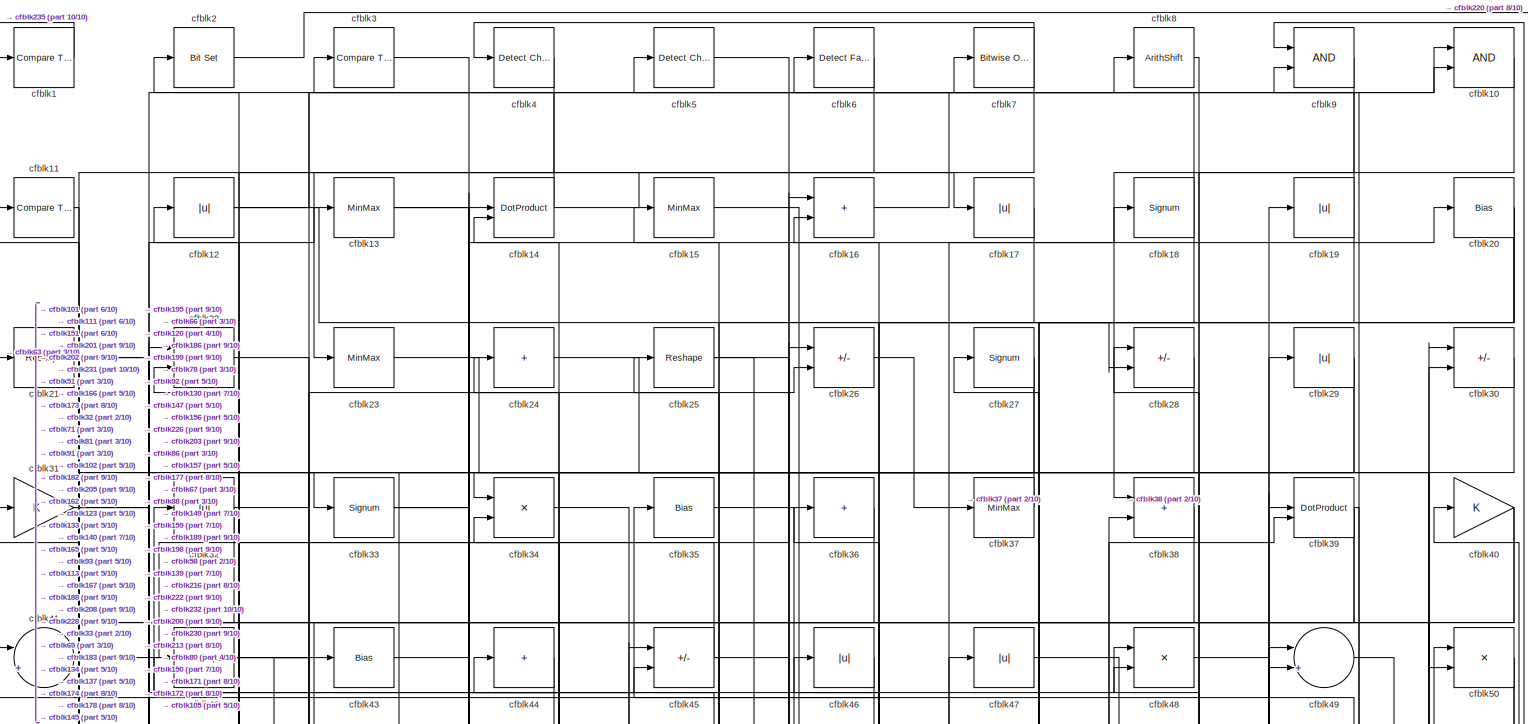
[diagram: root canvas - part 1/10, full width, top band]
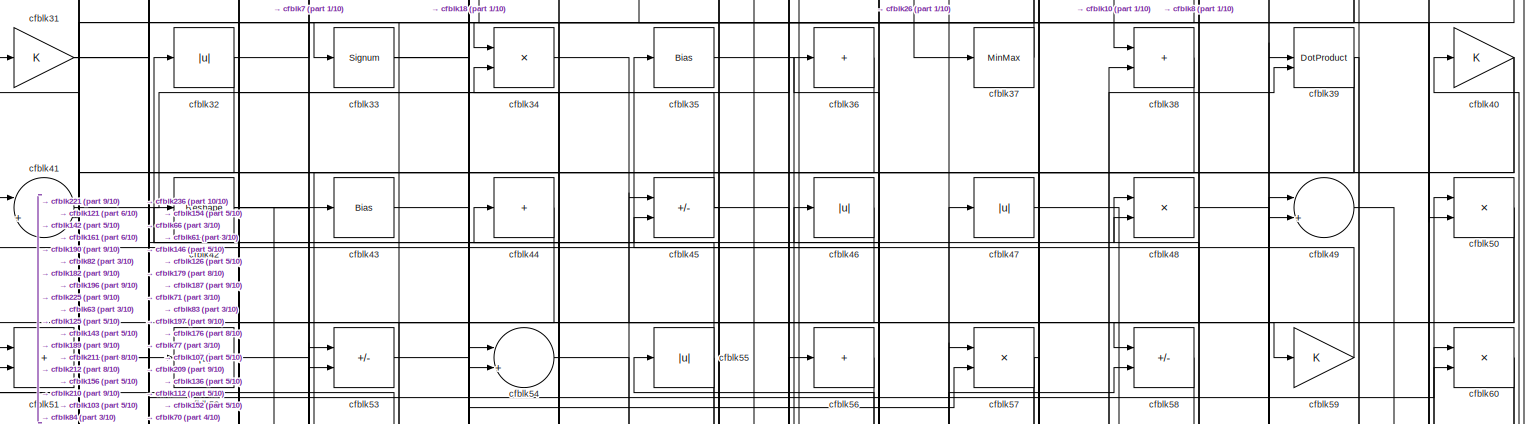
[diagram: root canvas - part 2/10, full width, top band]
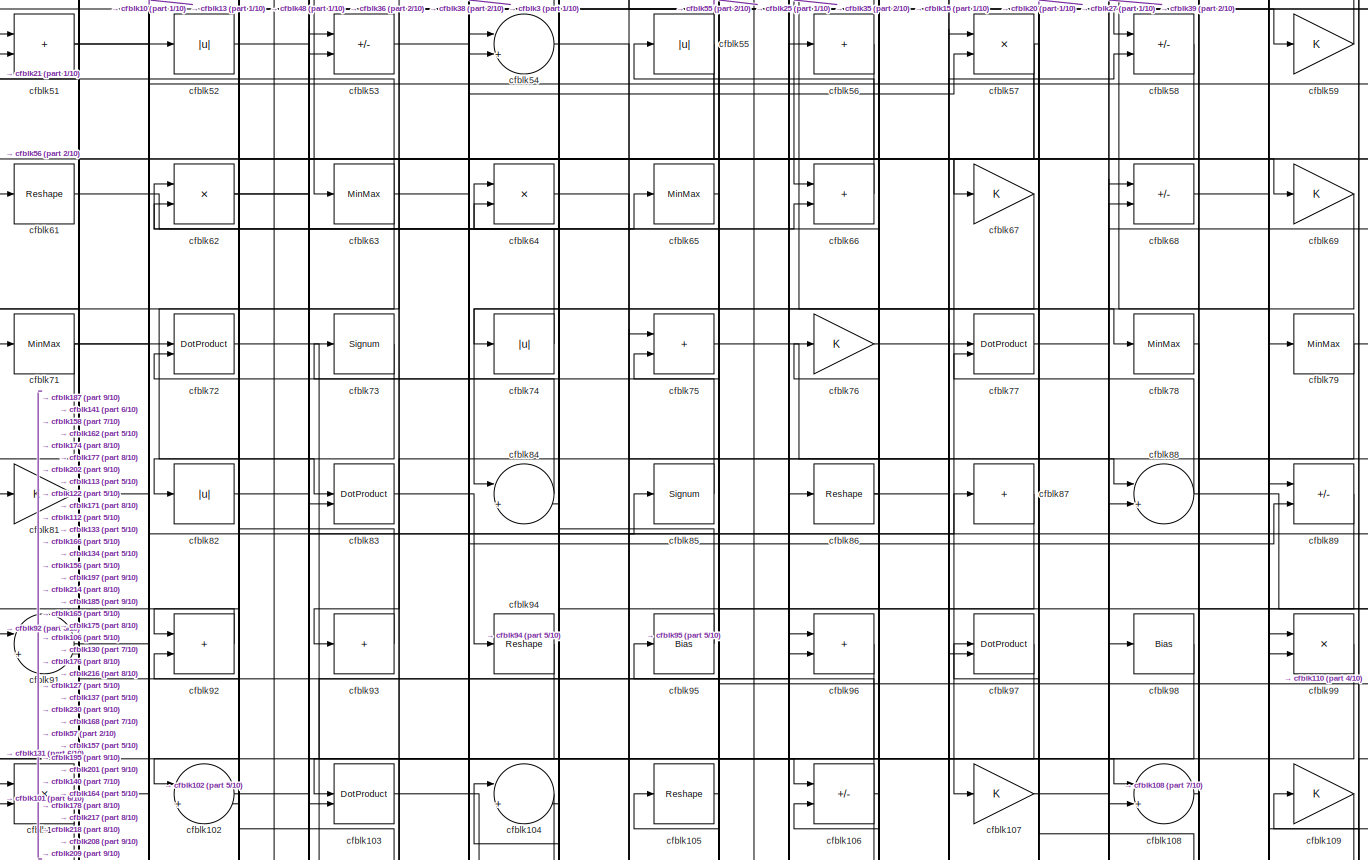
[diagram: root canvas - part 3/10, full width, middle band]
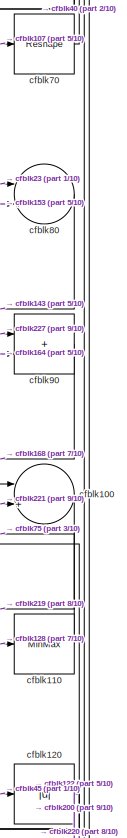
[diagram: root canvas - part 4/10, middle right region]
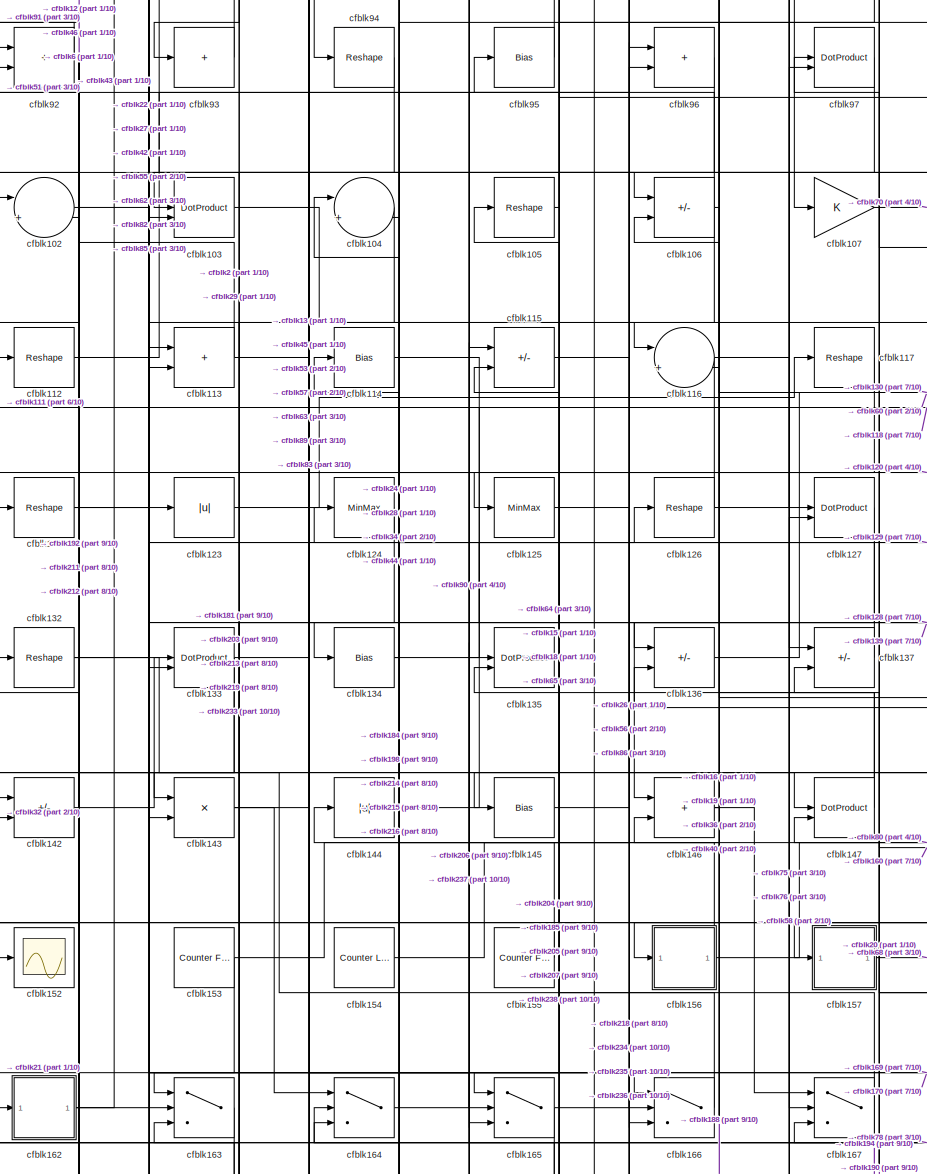
[diagram: root canvas - part 5/10, central region]
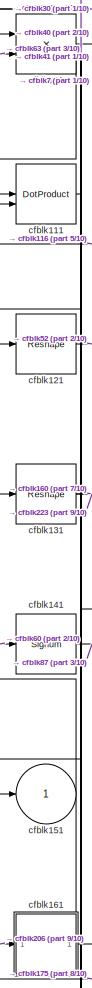
[diagram: root canvas - part 6/10, middle left region]
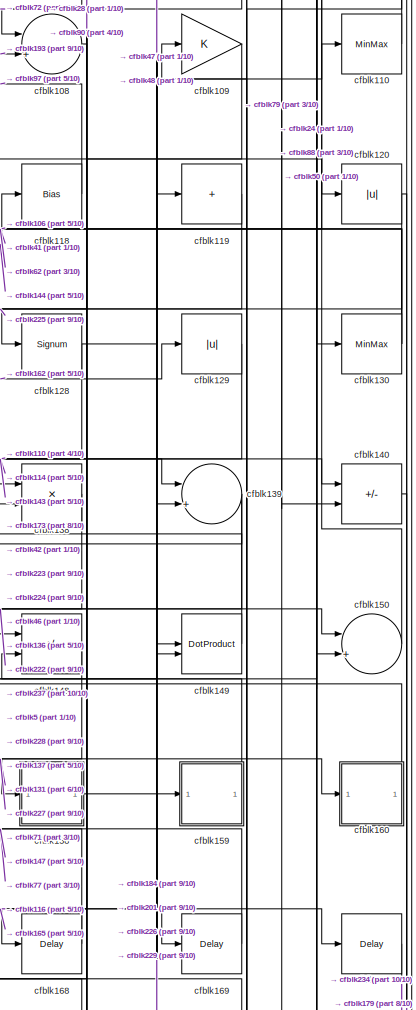
[diagram: root canvas - part 7/10, middle right region]
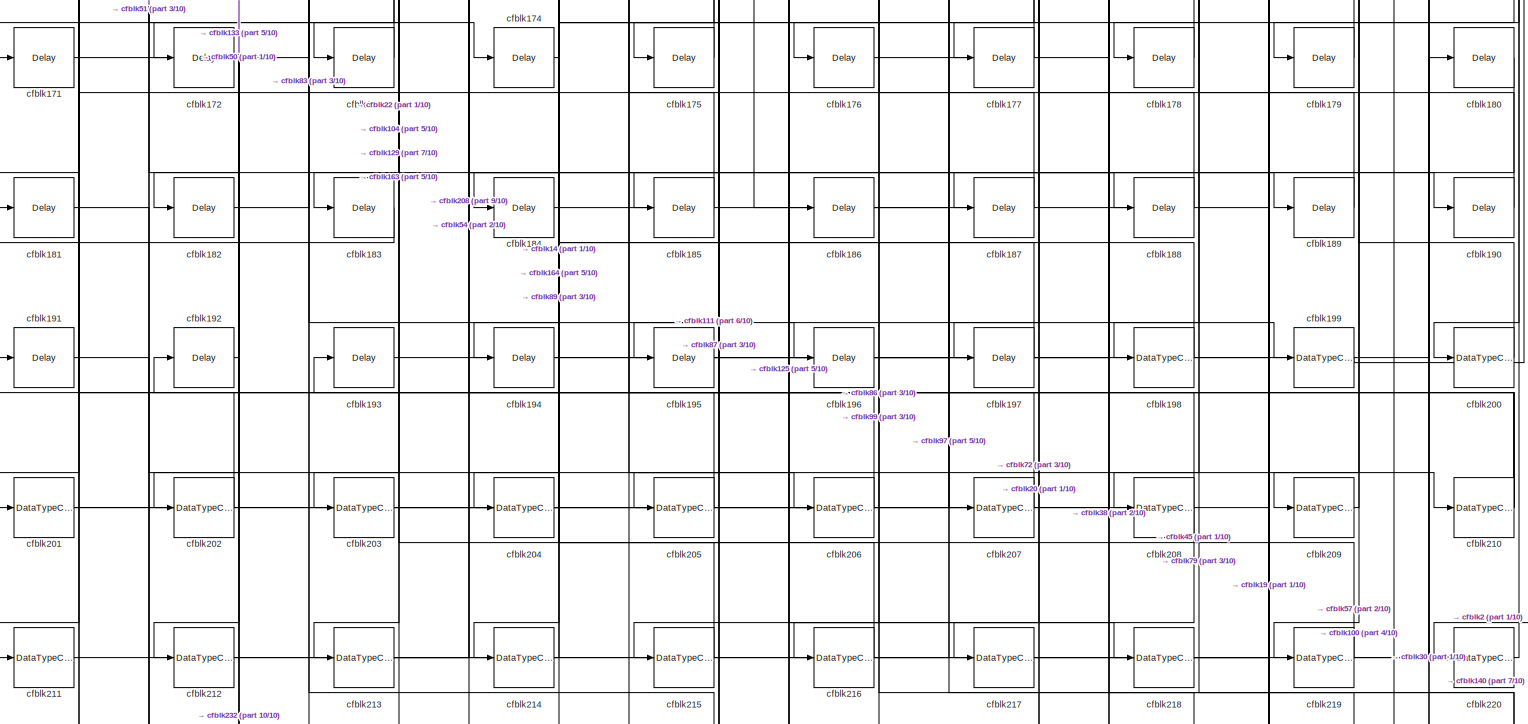
[diagram: root canvas - part 8/10, full width, bottom band]
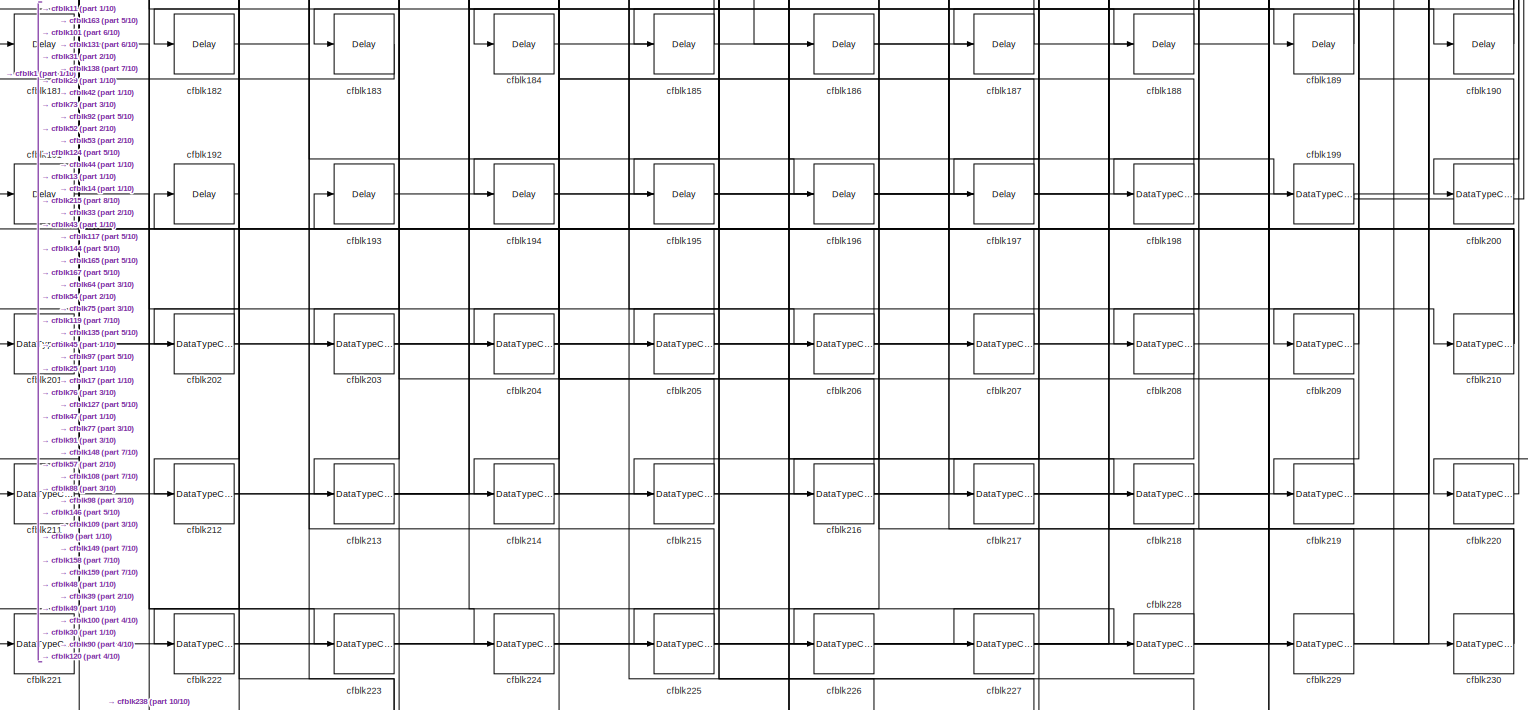
[diagram: root canvas - part 9/10, full width, bottom band]
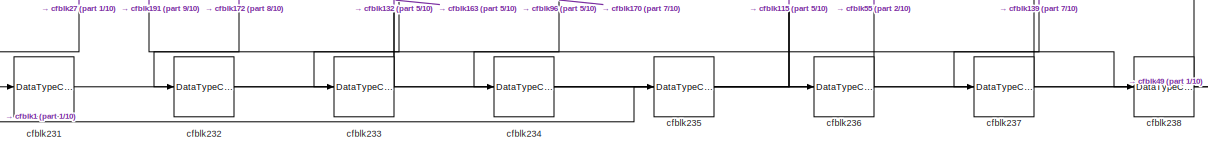
[diagram: root canvas - part 10/10, full width, bottom band]
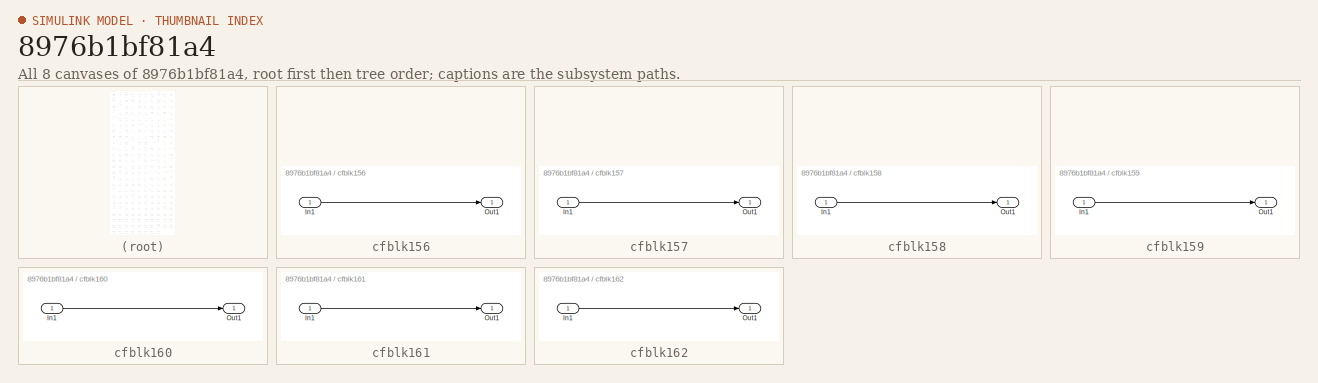
[diagram: thumbnail index - all 8 canvases of the model, root first then tree order]
MODEL slx_8976b1bf81a4
KIND model
CONFIG AbsTol = auto
CONFIG EnableMultiTasking = off
CONFIG FixedStep = auto
CONFIG MaxStep = auto
CONFIG MinStep = auto
CONFIG RelTol = 1e-3
CONFIG SampleTimeConstraint = Unconstrained
CONFIG SolverName = VariableStepAuto
CONFIG StartTime = 0.0
CONFIG StopTime = 10.0
BLOCK [Reference] cfblk1  REF=hdlsllib/Logic and Bit
Operations/Compare
To Zero
  SourceBlock = hdlsllib/Logic and Bit\nOperations/Compare\nTo Zero
  SourceType = Compare To Zero
BLOCK [Logic] cfblk10
  AllPortsSameDT = off
  OutDataTypeStr = boolean
BLOCK [Sum] cfblk100
  Inputs = |++
BLOCK [Product] cfblk101
  Inputs = */
  RndMeth = Zero
  SaturateOnIntegerOverflow = on
BLOCK [Sum] cfblk102
  Inputs = |++
BLOCK [DotProduct] cfblk103
  OutDataTypeStr = Inherit: Inherit via internal rule
BLOCK [Sum] cfblk104
  Inputs = |++
BLOCK [Reshape] cfblk105
BLOCK [Sum] cfblk106
  IconShape = rectangular
  Inputs = +-
BLOCK [Gain] cfblk107
BLOCK [Sum] cfblk108
  Inputs = |++
BLOCK [Gain] cfblk109
BLOCK [Reference] cfblk11  REF=hdlsllib/Logic and Bit
Operations/Compare
To Zero
  SourceBlock = hdlsllib/Logic and Bit\nOperations/Compare\nTo Zero
  SourceType = Compare To Zero
BLOCK [MinMax] cfblk110
BLOCK [DotProduct] cfblk111
  OutDataTypeStr = Inherit: Inherit via internal rule
BLOCK [Reshape] cfblk112
BLOCK [Sum] cfblk113
  IconShape = rectangular
BLOCK [Bias] cfblk114
  Bias = 0.0
  SaturateOnIntegerOverflow = off
BLOCK [Sum] cfblk115
  IconShape = rectangular
  Inputs = +-
BLOCK [Sum] cfblk116
  Inputs = |++
BLOCK [Reshape] cfblk117
BLOCK [Bias] cfblk118
  Bias = 0.0
  SaturateOnIntegerOverflow = off
BLOCK [Sum] cfblk119
  IconShape = rectangular
  Inputs = +
BLOCK [Abs] cfblk12
  SaturateOnIntegerOverflow = off
BLOCK [Abs] cfblk120
  SaturateOnIntegerOverflow = off
BLOCK [Reshape] cfblk121
BLOCK [Reshape] cfblk122
BLOCK [Abs] cfblk123
  SaturateOnIntegerOverflow = off
BLOCK [MinMax] cfblk124
BLOCK [MinMax] cfblk125
BLOCK [Reshape] cfblk126
BLOCK [DotProduct] cfblk127
  OutDataTypeStr = Inherit: Inherit via internal rule
BLOCK [Signum] cfblk128
BLOCK [Abs] cfblk129
  SaturateOnIntegerOverflow = off
BLOCK [MinMax] cfblk13
BLOCK [MinMax] cfblk130
BLOCK [Reshape] cfblk131
BLOCK [Reshape] cfblk132
BLOCK [DotProduct] cfblk133
  OutDataTypeStr = Inherit: Inherit via internal rule
BLOCK [Bias] cfblk134
  Bias = 0.0
  SaturateOnIntegerOverflow = off
BLOCK [DotProduct] cfblk135
  OutDataTypeStr = Inherit: Inherit via internal rule
BLOCK [Sum] cfblk136
  IconShape = rectangular
  Inputs = +-
BLOCK [Sum] cfblk137
  IconShape = rectangular
  Inputs = +-
BLOCK [Product] cfblk138
  Inputs = */
  RndMeth = Zero
  SaturateOnIntegerOverflow = on
BLOCK [Sum] cfblk139
  Inputs = |++
BLOCK [DotProduct] cfblk14
  OutDataTypeStr = Inherit: Inherit via internal rule
BLOCK [Sum] cfblk140
  IconShape = rectangular
  Inputs = +-
BLOCK [Signum] cfblk141
BLOCK [Sum] cfblk142
  IconShape = rectangular
  Inputs = +-
BLOCK [Product] cfblk143
  Inputs = */
  RndMeth = Zero
  SaturateOnIntegerOverflow = on
BLOCK [Abs] cfblk144
  SaturateOnIntegerOverflow = off
BLOCK [Bias] cfblk145
  Bias = 0.0
  SaturateOnIntegerOverflow = off
BLOCK [Sum] cfblk146
  IconShape = rectangular
BLOCK [DotProduct] cfblk147
  OutDataTypeStr = Inherit: Inherit via internal rule
BLOCK [Sum] cfblk148
  IconShape = rectangular
  Inputs = +-
BLOCK [DotProduct] cfblk149
  OutDataTypeStr = Inherit: Inherit via internal rule
BLOCK [MinMax] cfblk15
BLOCK [Sum] cfblk150
  Inputs = |++
BLOCK [Outport] cfblk151
  VectorParamsAs1DForOutWhenUnconnected = off
BLOCK [Scope] cfblk152
  Floating = off
  NumInputPorts = 1
  ScopeSpecificationString = Simulink.scopes.TimeScopeBlockCfg('CurrentConfiguration', extmgr.ConfigurationSet(extmgr.Configuration('Core','General UI',true),extmgr.Configuration('Core','Source UI',true),extmgr.Configuration('Sources','WiredSimulink',true,'DataLoggingVariableName','ScopeData2','DataLoggingSaveFormat','Array','DataLoggingLimitDataPoints',true,'DataLoggingDecimation','1'),extmgr.Configuration('Visuals','Time Do...<+868ch>
BLOCK [Reference] cfblk153  REF=hdlsllib/Sources/Counter
Free-Running
  SourceBlock = hdlsllib/Sources/Counter\nFree-Running
  SourceType = Counter Free-Running
BLOCK [Reference] cfblk154  REF=hdlsllib/Sources/Counter
Limited
  SourceBlock = hdlsllib/Sources/Counter\nLimited
  SourceType = Counter Limited
BLOCK [Reference] cfblk155  REF=hdlsllib/Sources/Counter
Free-Running
  SourceBlock = hdlsllib/Sources/Counter\nFree-Running
  SourceType = Counter Free-Running
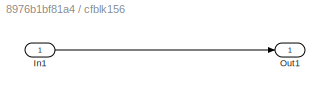
BLOCK [SubSystem] cfblk156
  LibrarySourceBlock = hdlsllib/Ports &\nSubsystems/Subsystem
BLOCK [Inport] cfblk156/In1
BLOCK [Outport] cfblk156/Out1
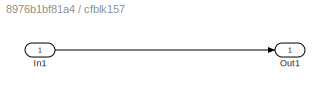
BLOCK [SubSystem] cfblk157
  LibrarySourceBlock = hdlsllib/Ports &\nSubsystems/Subsystem
BLOCK [Inport] cfblk157/In1
BLOCK [Outport] cfblk157/Out1
BLOCK [SubSystem] cfblk158
  LibrarySourceBlock = hdlsllib/Ports &\nSubsystems/Subsystem
BLOCK [Inport] cfblk158/In1
BLOCK [Outport] cfblk158/Out1
BLOCK [SubSystem] cfblk159
  LibrarySourceBlock = hdlsllib/Ports &\nSubsystems/Subsystem
BLOCK [Inport] cfblk159/In1
BLOCK [Outport] cfblk159/Out1
BLOCK [Sum] cfblk16
  IconShape = rectangular
BLOCK [SubSystem] cfblk160
  LibrarySourceBlock = hdlsllib/Ports &\nSubsystems/Subsystem
BLOCK [Inport] cfblk160/In1
BLOCK [Outport] cfblk160/Out1
BLOCK [SubSystem] cfblk161
  LibrarySourceBlock = hdlsllib/Ports &\nSubsystems/Subsystem
BLOCK [Inport] cfblk161/In1
BLOCK [Outport] cfblk161/Out1
BLOCK [SubSystem] cfblk162
  LibrarySourceBlock = hdlsllib/Ports &\nSubsystems/Subsystem
BLOCK [Inport] cfblk162/In1
BLOCK [Outport] cfblk162/Out1
BLOCK [Switch] cfblk163
  InputSameDT = off
  SaturateOnIntegerOverflow = off
BLOCK [Switch] cfblk164
  InputSameDT = off
  SaturateOnIntegerOverflow = off
BLOCK [Switch] cfblk165
  InputSameDT = off
  SaturateOnIntegerOverflow = off
BLOCK [Switch] cfblk166
  InputSameDT = off
  SaturateOnIntegerOverflow = off
BLOCK [Switch] cfblk167
  InputSameDT = off
  SaturateOnIntegerOverflow = off
BLOCK [Delay] cfblk168
  InputPortMap = u0
  SampleTime = 1
BLOCK [Delay] cfblk169
  InputPortMap = u0
  SampleTime = 1
BLOCK [Abs] cfblk17
  SaturateOnIntegerOverflow = off
BLOCK [Delay] cfblk170
  InputPortMap = u0
  SampleTime = 1
BLOCK [Delay] cfblk171
  InputPortMap = u0
  SampleTime = 1
BLOCK [Delay] cfblk172
  InputPortMap = u0
  SampleTime = 1
BLOCK [Delay] cfblk173
  InputPortMap = u0
  SampleTime = 1
BLOCK [Delay] cfblk174
  InputPortMap = u0
  SampleTime = 1
BLOCK [Delay] cfblk175
  InputPortMap = u0
  SampleTime = 1
BLOCK [Delay] cfblk176
  InputPortMap = u0
  SampleTime = 1
BLOCK [Delay] cfblk177
  InputPortMap = u0
  SampleTime = 1
BLOCK [Delay] cfblk178
  InputPortMap = u0
  SampleTime = 1
BLOCK [Delay] cfblk179
  InputPortMap = u0
  SampleTime = 1
BLOCK [Signum] cfblk18
BLOCK [Delay] cfblk180
  InputPortMap = u0
  SampleTime = 1
BLOCK [Delay] cfblk181
  InputPortMap = u0
  SampleTime = 1
BLOCK [Delay] cfblk182
  InputPortMap = u0
  SampleTime = 1
BLOCK [Delay] cfblk183
  InputPortMap = u0
  SampleTime = 1
BLOCK [Delay] cfblk184
  InputPortMap = u0
  SampleTime = 1
BLOCK [Delay] cfblk185
  InputPortMap = u0
  SampleTime = 1
BLOCK [Delay] cfblk186
  InputPortMap = u0
  SampleTime = 1
BLOCK [Delay] cfblk187
  InputPortMap = u0
  SampleTime = 1
BLOCK [Delay] cfblk188
  InputPortMap = u0
  SampleTime = 1
BLOCK [Delay] cfblk189
  InputPortMap = u0
  SampleTime = 1
BLOCK [Abs] cfblk19
  SaturateOnIntegerOverflow = off
BLOCK [Delay] cfblk190
  InputPortMap = u0
  SampleTime = 1
BLOCK [Delay] cfblk191
  InputPortMap = u0
  SampleTime = 1
BLOCK [Delay] cfblk192
  InputPortMap = u0
  SampleTime = 1
BLOCK [Delay] cfblk193
  InputPortMap = u0
  SampleTime = 1
BLOCK [Delay] cfblk194
  InputPortMap = u0
  SampleTime = 1
BLOCK [Delay] cfblk195
  InputPortMap = u0
  SampleTime = 1
BLOCK [Delay] cfblk196
  InputPortMap = u0
  SampleTime = 1
BLOCK [Delay] cfblk197
  InputPortMap = u0
  SampleTime = 1
BLOCK [DataTypeConversion] cfblk198
  RndMeth = Floor
  SaturateOnIntegerOverflow = off
BLOCK [DataTypeConversion] cfblk199
  OutDataTypeStr = uint8
  RndMeth = Floor
  SaturateOnIntegerOverflow = off
BLOCK [Reference] cfblk2  REF=simulink/Logic and Bit
Operations/Bit Set
  LibrarySourceBlock = hdlsllib/Logic and Bit\nOperations/Bit Set
  SourceBlock = simulink/Logic and Bit\nOperations/Bit Set
  SourceType = Bit Set
BLOCK [Bias] cfblk20
  Bias = 0.0
  SaturateOnIntegerOverflow = off
BLOCK [DataTypeConversion] cfblk200
  OutDataTypeStr = uint8
  RndMeth = Floor
  SaturateOnIntegerOverflow = off
BLOCK [DataTypeConversion] cfblk201
  RndMeth = Floor
  SaturateOnIntegerOverflow = off
BLOCK [DataTypeConversion] cfblk202
  OutDataTypeStr = uint8
  RndMeth = Floor
  SaturateOnIntegerOverflow = off
BLOCK [DataTypeConversion] cfblk203
  OutDataTypeStr = uint8
  RndMeth = Floor
  SaturateOnIntegerOverflow = off
BLOCK [DataTypeConversion] cfblk204
  OutDataTypeStr = uint8
  RndMeth = Floor
  SaturateOnIntegerOverflow = off
BLOCK [DataTypeConversion] cfblk205
  OutDataTypeStr = uint8
  RndMeth = Floor
  SaturateOnIntegerOverflow = off
BLOCK [DataTypeConversion] cfblk206
  OutDataTypeStr = uint8
  RndMeth = Floor
  SaturateOnIntegerOverflow = off
BLOCK [DataTypeConversion] cfblk207
  OutDataTypeStr = uint8
  RndMeth = Floor
  SaturateOnIntegerOverflow = off
BLOCK [DataTypeConversion] cfblk208
  RndMeth = Floor
  SaturateOnIntegerOverflow = off
BLOCK [DataTypeConversion] cfblk209
  OutDataTypeStr = uint8
  RndMeth = Floor
  SaturateOnIntegerOverflow = off
BLOCK [Reshape] cfblk21
BLOCK [DataTypeConversion] cfblk210
  RndMeth = Floor
  SaturateOnIntegerOverflow = off
BLOCK [DataTypeConversion] cfblk211
  OutDataTypeStr = uint8
  RndMeth = Floor
  SaturateOnIntegerOverflow = off
BLOCK [DataTypeConversion] cfblk212
  OutDataTypeStr = uint8
  RndMeth = Floor
  SaturateOnIntegerOverflow = off
BLOCK [DataTypeConversion] cfblk213
  RndMeth = Floor
  SaturateOnIntegerOverflow = off
BLOCK [DataTypeConversion] cfblk214
  OutDataTypeStr = uint8
  RndMeth = Floor
  SaturateOnIntegerOverflow = off
BLOCK [DataTypeConversion] cfblk215
  OutDataTypeStr = uint8
  RndMeth = Floor
  SaturateOnIntegerOverflow = off
BLOCK [DataTypeConversion] cfblk216
  RndMeth = Floor
  SaturateOnIntegerOverflow = off
BLOCK [DataTypeConversion] cfblk217
  OutDataTypeStr = uint8
  RndMeth = Floor
  SaturateOnIntegerOverflow = off
BLOCK [DataTypeConversion] cfblk218
  OutDataTypeStr = uint8
  RndMeth = Floor
  SaturateOnIntegerOverflow = off
BLOCK [DataTypeConversion] cfblk219
  RndMeth = Floor
  SaturateOnIntegerOverflow = off
BLOCK [Sum] cfblk22
  IconShape = rectangular
BLOCK [DataTypeConversion] cfblk220
  OutDataTypeStr = uint8
  RndMeth = Floor
  SaturateOnIntegerOverflow = off
BLOCK [DataTypeConversion] cfblk221
  OutDataTypeStr = uint8
  RndMeth = Floor
  SaturateOnIntegerOverflow = off
BLOCK [DataTypeConversion] cfblk222
  OutDataTypeStr = uint8
  RndMeth = Floor
  SaturateOnIntegerOverflow = off
BLOCK [DataTypeConversion] cfblk223
  OutDataTypeStr = uint8
  RndMeth = Floor
  SaturateOnIntegerOverflow = off
BLOCK [DataTypeConversion] cfblk224
  OutDataTypeStr = uint8
  RndMeth = Floor
  SaturateOnIntegerOverflow = off
BLOCK [DataTypeConversion] cfblk225
  OutDataTypeStr = uint8
  RndMeth = Floor
  SaturateOnIntegerOverflow = off
BLOCK [DataTypeConversion] cfblk226
  OutDataTypeStr = uint8
  RndMeth = Floor
  SaturateOnIntegerOverflow = off
BLOCK [DataTypeConversion] cfblk227
  OutDataTypeStr = uint8
  RndMeth = Floor
  SaturateOnIntegerOverflow = off
BLOCK [DataTypeConversion] cfblk228
  OutDataTypeStr = uint8
  RndMeth = Floor
  SaturateOnIntegerOverflow = off
BLOCK [DataTypeConversion] cfblk229
  OutDataTypeStr = uint8
  RndMeth = Floor
  SaturateOnIntegerOverflow = off
BLOCK [MinMax] cfblk23
BLOCK [DataTypeConversion] cfblk230
  RndMeth = Floor
  SaturateOnIntegerOverflow = off
BLOCK [DataTypeConversion] cfblk231
  OutDataTypeStr = uint8
  RndMeth = Floor
  SaturateOnIntegerOverflow = off
BLOCK [DataTypeConversion] cfblk232
  OutDataTypeStr = uint8
  RndMeth = Floor
  SaturateOnIntegerOverflow = off
BLOCK [DataTypeConversion] cfblk233
  RndMeth = Floor
  SaturateOnIntegerOverflow = off
BLOCK [DataTypeConversion] cfblk234
  OutDataTypeStr = uint8
  RndMeth = Floor
  SaturateOnIntegerOverflow = off
BLOCK [DataTypeConversion] cfblk235
  OutDataTypeStr = uint8
  RndMeth = Floor
  SaturateOnIntegerOverflow = off
BLOCK [DataTypeConversion] cfblk236
  OutDataTypeStr = uint8
  RndMeth = Floor
  SaturateOnIntegerOverflow = off
BLOCK [DataTypeConversion] cfblk237
  OutDataTypeStr = uint8
  RndMeth = Floor
  SaturateOnIntegerOverflow = off
BLOCK [DataTypeConversion] cfblk238
  OutDataTypeStr = uint8
  RndMeth = Floor
  SaturateOnIntegerOverflow = off
BLOCK [Sum] cfblk24
  IconShape = rectangular
  Inputs = +
BLOCK [Reshape] cfblk25
BLOCK [Sum] cfblk26
  IconShape = rectangular
  Inputs = +-
BLOCK [Signum] cfblk27
BLOCK [Sum] cfblk28
  IconShape = rectangular
  Inputs = +-
BLOCK [Abs] cfblk29
  SaturateOnIntegerOverflow = off
BLOCK [Reference] cfblk3  REF=hdlsllib/Logic and Bit
Operations/Compare
To Constant
  SourceBlock = hdlsllib/Logic and Bit\nOperations/Compare\nTo Constant
  SourceType = Compare To Constant
BLOCK [Sum] cfblk30
  IconShape = rectangular
  Inputs = +-
BLOCK [Gain] cfblk31
BLOCK [Abs] cfblk32
  SaturateOnIntegerOverflow = off
BLOCK [Signum] cfblk33
BLOCK [Product] cfblk34
  Inputs = */
  RndMeth = Zero
  SaturateOnIntegerOverflow = on
BLOCK [Bias] cfblk35
  Bias = 0.0
  SaturateOnIntegerOverflow = off
BLOCK [Sum] cfblk36
  IconShape = rectangular
  Inputs = +
BLOCK [MinMax] cfblk37
BLOCK [Sum] cfblk38
  IconShape = rectangular
BLOCK [DotProduct] cfblk39
  OutDataTypeStr = Inherit: Inherit via internal rule
BLOCK [Reference] cfblk4  REF=simulink/Logic and Bit
Operations/Detect
Change
  LibrarySourceBlock = hdlsllib/Logic and Bit\nOperations/Detect\nChange
  SourceBlock = simulink/Logic and Bit\nOperations/Detect\nChange
  SourceType = Detect Change
BLOCK [Gain] cfblk40
BLOCK [Sum] cfblk41
  Inputs = |++
BLOCK [Reshape] cfblk42
BLOCK [Bias] cfblk43
  Bias = 0.0
  SaturateOnIntegerOverflow = off
BLOCK [Sum] cfblk44
  IconShape = rectangular
  Inputs = +
BLOCK [Sum] cfblk45
  IconShape = rectangular
  Inputs = +-
BLOCK [Abs] cfblk46
  SaturateOnIntegerOverflow = off
BLOCK [Abs] cfblk47
  SaturateOnIntegerOverflow = off
BLOCK [Product] cfblk48
  Inputs = */
  RndMeth = Zero
  SaturateOnIntegerOverflow = on
BLOCK [Sum] cfblk49
  Inputs = |++
BLOCK [Reference] cfblk5  REF=simulink/Logic and Bit
Operations/Detect
Change
  LibrarySourceBlock = hdlsllib/Logic and Bit\nOperations/Detect\nChange
  SourceBlock = simulink/Logic and Bit\nOperations/Detect\nChange
  SourceType = Detect Change
BLOCK [Product] cfblk50
  Inputs = */
  RndMeth = Zero
  SaturateOnIntegerOverflow = on
BLOCK [Sum] cfblk51
  IconShape = rectangular
BLOCK [Abs] cfblk52
  SaturateOnIntegerOverflow = off
BLOCK [Sum] cfblk53
  IconShape = rectangular
  Inputs = +-
BLOCK [Sum] cfblk54
  Inputs = |++
BLOCK [Abs] cfblk55
  SaturateOnIntegerOverflow = off
BLOCK [Sum] cfblk56
  IconShape = rectangular
  Inputs = +
BLOCK [Product] cfblk57
  Inputs = */
  RndMeth = Zero
  SaturateOnIntegerOverflow = on
BLOCK [Sum] cfblk58
  IconShape = rectangular
  Inputs = +-
BLOCK [Gain] cfblk59
BLOCK [Reference] cfblk6  REF=hdlsllib/Logic and Bit
Operations/Detect Fall
Negative
  SourceBlock = hdlsllib/Logic and Bit\nOperations/Detect Fall\nNegative
  SourceType = Detect Fall Negative
BLOCK [Product] cfblk60
  Inputs = */
  RndMeth = Zero
  SaturateOnIntegerOverflow = on
BLOCK [Reshape] cfblk61
BLOCK [Product] cfblk62
  Inputs = */
  RndMeth = Zero
  SaturateOnIntegerOverflow = on
BLOCK [MinMax] cfblk63
BLOCK [Product] cfblk64
  Inputs = */
  RndMeth = Zero
  SaturateOnIntegerOverflow = on
BLOCK [MinMax] cfblk65
BLOCK [Sum] cfblk66
  IconShape = rectangular
BLOCK [Gain] cfblk67
BLOCK [Sum] cfblk68
  IconShape = rectangular
  Inputs = +-
BLOCK [Gain] cfblk69
BLOCK [Reference] cfblk7  REF=simulink/Logic and Bit
Operations/Bitwise
Operator
  LibrarySourceBlock = hdlsllib/Logic and Bit\nOperations/Bitwise\nOperator
  SourceBlock = simulink/Logic and Bit\nOperations/Bitwise\nOperator
  SourceType = Bitwise Operator
BLOCK [Reshape] cfblk70
BLOCK [MinMax] cfblk71
BLOCK [DotProduct] cfblk72
  OutDataTypeStr = Inherit: Inherit via internal rule
BLOCK [Signum] cfblk73
BLOCK [Abs] cfblk74
  SaturateOnIntegerOverflow = off
BLOCK [Sum] cfblk75
  IconShape = rectangular
BLOCK [Gain] cfblk76
BLOCK [DotProduct] cfblk77
  OutDataTypeStr = Inherit: Inherit via internal rule
BLOCK [MinMax] cfblk78
BLOCK [MinMax] cfblk79
BLOCK [ArithShift] cfblk8
  BitShiftNumber = 8
  InputPortMap = u0
BLOCK [Sum] cfblk80
  Inputs = |++
BLOCK [Gain] cfblk81
BLOCK [Abs] cfblk82
  SaturateOnIntegerOverflow = off
BLOCK [DotProduct] cfblk83
  OutDataTypeStr = Inherit: Inherit via internal rule
BLOCK [Sum] cfblk84
  Inputs = |++
BLOCK [Signum] cfblk85
BLOCK [Reshape] cfblk86
BLOCK [Sum] cfblk87
  IconShape = rectangular
  Inputs = +
BLOCK [Sum] cfblk88
  Inputs = |++
BLOCK [Sum] cfblk89
  IconShape = rectangular
  Inputs = +-
BLOCK [Logic] cfblk9
  AllPortsSameDT = off
  OutDataTypeStr = boolean
BLOCK [Sum] cfblk90
  IconShape = rectangular
BLOCK [Sum] cfblk91
  Inputs = |++
BLOCK [Sum] cfblk92
  IconShape = rectangular
BLOCK [Sum] cfblk93
  IconShape = rectangular
  Inputs = +
BLOCK [Reshape] cfblk94
BLOCK [Bias] cfblk95
  Bias = 0.0
  SaturateOnIntegerOverflow = off
BLOCK [Sum] cfblk96
  IconShape = rectangular
BLOCK [DotProduct] cfblk97
  OutDataTypeStr = Inherit: Inherit via internal rule
BLOCK [Bias] cfblk98
  Bias = 0.0
  SaturateOnIntegerOverflow = off
BLOCK [Product] cfblk99
  Inputs = */
  RndMeth = Zero
  SaturateOnIntegerOverflow = on
LINE cfblk100:1 -> cfblk219:1
NET cfblk101:1 -> cfblk161:1, cfblk206:1
LINE cfblk102:1 -> cfblk85:1
LINE cfblk103:1 -> cfblk116:1
LINE cfblk104:1 -> cfblk213:1
LINE cfblk105:1 -> cfblk15:1
NET cfblk106:1 -> cfblk113:2, cfblk116:2, cfblk51:2
LINE cfblk107:1 -> cfblk70:1
LINE cfblk108:1 -> cfblk128:1
LINE cfblk109:1 -> cfblk208:1
LINE cfblk10:1 -> cfblk38:1
LINE cfblk110:1 -> cfblk75:2
LINE cfblk111:1 -> cfblk41:2
LINE cfblk112:1 -> cfblk86:1
NET cfblk113:1 -> cfblk12:1, cfblk45:2
LINE cfblk114:1 -> cfblk139:1
LINE cfblk115:1 -> cfblk236:1
NET cfblk116:1 -> cfblk111:2, cfblk170:1
LINE cfblk117:1 -> cfblk184:1
LINE cfblk118:1 -> cfblk97:1
LINE cfblk119:1 -> cfblk225:1
LINE cfblk11:1 -> cfblk201:1
NET cfblk120:1 -> cfblk122:1, cfblk200:1
LINE cfblk121:1 -> cfblk52:1
NET cfblk122:1 -> cfblk166:1, cfblk65:1
LINE cfblk123:1 -> cfblk117:1
LINE cfblk124:1 -> cfblk203:1
LINE cfblk125:1 -> cfblk218:1
NET cfblk126:1 -> cfblk102:2, cfblk58:2
LINE cfblk127:1 -> cfblk146:1
NET cfblk128:1 -> cfblk110:1, cfblk143:2
LINE cfblk129:1 -> cfblk173:1
NET cfblk12:1 -> cfblk28:2, cfblk8:1
NET cfblk130:1 -> cfblk106:2, cfblk41:1, cfblk62:2
NET cfblk131:1 -> cfblk160:1, cfblk223:1
NET cfblk132:1 -> cfblk126:1, cfblk147:1
NET cfblk133:1 -> cfblk211:1, cfblk212:1, cfblk89:2
NET cfblk134:1 -> cfblk24:1, cfblk68:2
LINE cfblk135:1 -> cfblk205:1
LINE cfblk136:1 -> cfblk60:1
LINE cfblk137:1 -> cfblk44:1
LINE cfblk138:1 -> cfblk222:1
NET cfblk139:1 -> cfblk136:2, cfblk237:1
NET cfblk13:1 -> cfblk167:2, cfblk188:1
LINE cfblk140:1 -> cfblk179:1
LINE cfblk141:1 -> cfblk87:1
LINE cfblk142:1 -> cfblk133:1
NET cfblk143:1 -> cfblk164:1, cfblk57:2
LINE cfblk144:1 -> cfblk118:1
LINE cfblk145:1 -> cfblk26:1
NET cfblk146:1 -> cfblk167:1, cfblk36:1
NET cfblk147:1 -> cfblk16:2, cfblk95:1
LINE cfblk148:1 -> cfblk227:1
LINE cfblk149:1 -> cfblk46:1
NET cfblk14:1 -> cfblk17:1, cfblk3:1
LINE cfblk150:1 -> cfblk50:1
NET cfblk153:1 -> cfblk163:1, cfblk80:2
LINE cfblk154:1 -> cfblk56:1
LINE cfblk155:1 -> cfblk114:1
LINE cfblk156/In1:1 -> cfblk156/Out1:1
NET cfblk156:1 -> cfblk34:2, cfblk89:1
LINE cfblk157/In1:1 -> cfblk157/Out1:1
LINE cfblk157:1 -> cfblk68:1
LINE cfblk158/In1:1 -> cfblk158/Out1:1
LINE cfblk158:1 -> cfblk229:1
LINE cfblk159/In1:1 -> cfblk159/Out1:1
LINE cfblk159:1 -> cfblk28:1
LINE cfblk15:1 -> cfblk78:1
LINE cfblk160/In1:1 -> cfblk160/Out1:1
LINE cfblk160:1 -> cfblk137:2
LINE cfblk161/In1:1 -> cfblk161/Out1:1
NET cfblk161:1 -> cfblk141:1, cfblk60:2
LINE cfblk162/In1:1 -> cfblk162/Out1:1
NET cfblk162:1 -> cfblk129:1, cfblk43:1
LINE cfblk163:1 -> cfblk181:1
LINE cfblk164:1 -> cfblk90:2
NET cfblk165:1 -> cfblk169:1, cfblk204:1
LINE cfblk166:1 -> cfblk105:1
NET cfblk167:1 -> cfblk142:1, cfblk194:1
LINE cfblk168:1 -> cfblk77:2
LINE cfblk169:1 -> cfblk147:2
LINE cfblk16:1 -> cfblk10:1
LINE cfblk170:1 -> cfblk234:1
LINE cfblk171:1 -> cfblk83:2
LINE cfblk172:1 -> cfblk232:1
LINE cfblk173:1 -> cfblk22:1
LINE cfblk174:1 -> cfblk14:2
LINE cfblk175:1 -> cfblk111:1
LINE cfblk176:1 -> cfblk38:2
LINE cfblk177:1 -> cfblk72:1
LINE cfblk178:1 -> cfblk45:1
LINE cfblk179:1 -> cfblk57:1
LINE cfblk17:1 -> cfblk226:1
LINE cfblk180:1 -> cfblk217:1
LINE cfblk181:1 -> cfblk224:1
LINE cfblk182:1 -> cfblk53:2
LINE cfblk183:1 -> cfblk1:1
LINE cfblk184:1 -> cfblk149:2
LINE cfblk185:1 -> cfblk75:1
LINE cfblk186:1 -> cfblk207:1
LINE cfblk187:1 -> cfblk91:2
LINE cfblk188:1 -> cfblk146:2
LINE cfblk189:1 -> cfblk48:2
NET cfblk18:1 -> cfblk145:1, cfblk5:1
LINE cfblk190:1 -> cfblk167:3
LINE cfblk191:1 -> cfblk238:1
LINE cfblk192:1 -> cfblk92:2
LINE cfblk193:1 -> cfblk108:2
LINE cfblk194:1 -> cfblk127:2
LINE cfblk195:1 -> cfblk88:2
LINE cfblk196:1 -> cfblk39:1
LINE cfblk197:1 -> cfblk64:2
NET cfblk198:1 -> cfblk144:1, cfblk30:2
LINE cfblk199:1 -> cfblk9:1
NET cfblk19:1 -> cfblk156:1, cfblk6:1
LINE cfblk1:1 -> cfblk235:1
LINE cfblk200:1 -> cfblk9:2
NET cfblk201:1 -> cfblk159:1, cfblk98:1
LINE cfblk202:1 -> cfblk11:1
LINE cfblk203:1 -> cfblk47:1
LINE cfblk204:1 -> cfblk124:1
LINE cfblk205:1 -> cfblk42:1
LINE cfblk206:1 -> cfblk135:1
LINE cfblk207:1 -> cfblk135:2
NET cfblk208:1 -> cfblk14:1, cfblk215:1
LINE cfblk209:1 -> cfblk109:1
NET cfblk20:1 -> cfblk157:1, cfblk177:1, cfblk67:1
NET cfblk210:1 -> cfblk191:1, cfblk192:1, cfblk193:1, cfblk31:1
LINE cfblk211:1 -> cfblk54:1
LINE cfblk212:1 -> cfblk54:2
NET cfblk213:1 -> cfblk30:1, cfblk97:2
LINE cfblk214:1 -> cfblk104:1
LINE cfblk215:1 -> cfblk104:2
NET cfblk216:1 -> cfblk164:3, cfblk19:1
LINE cfblk217:1 -> cfblk99:1
LINE cfblk218:1 -> cfblk99:2
NET cfblk219:1 -> cfblk163:3, cfblk180:1
NET cfblk21:1 -> cfblk166:3, cfblk50:2, cfblk51:1
LINE cfblk220:1 -> cfblk100:1
LINE cfblk221:1 -> cfblk100:2
LINE cfblk222:1 -> cfblk29:1
LINE cfblk223:1 -> cfblk138:1
LINE cfblk224:1 -> cfblk138:2
LINE cfblk225:1 -> cfblk53:1
LINE cfblk226:1 -> cfblk119:1
LINE cfblk227:1 -> cfblk90:1
LINE cfblk228:1 -> cfblk148:1
LINE cfblk229:1 -> cfblk148:2
LINE cfblk22:1 -> cfblk165:2
NET cfblk230:1 -> cfblk76:1, cfblk77:1
LINE cfblk231:1 -> cfblk49:1
LINE cfblk232:1 -> cfblk49:2
NET cfblk233:1 -> cfblk132:1, cfblk163:2
LINE cfblk234:1 -> cfblk96:1
LINE cfblk235:1 -> cfblk96:2
LINE cfblk236:1 -> cfblk55:1
LINE cfblk237:1 -> cfblk115:1
LINE cfblk238:1 -> cfblk115:2
LINE cfblk23:1 -> cfblk80:1
LINE cfblk24:1 -> cfblk150:2
NET cfblk25:1 -> cfblk186:1, cfblk199:1
LINE cfblk26:1 -> cfblk37:1
NET cfblk27:1 -> cfblk133:2, cfblk231:1
LINE cfblk28:1 -> cfblk134:1
NET cfblk29:1 -> cfblk182:1, cfblk93:1
LINE cfblk2:1 -> cfblk220:1
LINE cfblk30:1 -> cfblk151:1
NET cfblk31:1 -> cfblk190:1, cfblk33:1
NET cfblk32:1 -> cfblk142:2, cfblk7:1
NET cfblk33:1 -> cfblk189:1, cfblk18:1
LINE cfblk34:1 -> cfblk59:1
LINE cfblk35:1 -> cfblk66:1
LINE cfblk36:1 -> cfblk82:1
LINE cfblk37:1 -> cfblk34:1
LINE cfblk38:1 -> cfblk63:1
NET cfblk39:1 -> cfblk197:1, cfblk209:1, cfblk221:1
LINE cfblk3:1 -> cfblk69:1
NET cfblk40:1 -> cfblk121:1, cfblk136:1
LINE cfblk41:1 -> cfblk16:1
NET cfblk42:1 -> cfblk123:1, cfblk140:1, cfblk26:2
LINE cfblk43:1 -> cfblk228:1
LINE cfblk44:1 -> cfblk183:1
NET cfblk45:1 -> cfblk120:1, cfblk195:1, cfblk22:2
LINE cfblk46:1 -> cfblk92:1
LINE cfblk47:1 -> cfblk149:1
LINE cfblk48:1 -> cfblk139:2
LINE cfblk49:1 -> cfblk230:1
LINE cfblk4:1 -> cfblk23:1
NET cfblk50:1 -> cfblk171:1, cfblk172:1
NET cfblk51:1 -> cfblk162:1, cfblk174:1
LINE cfblk52:1 -> cfblk196:1
LINE cfblk53:1 -> cfblk125:1
LINE cfblk54:1 -> cfblk210:1
NET cfblk55:1 -> cfblk103:2, cfblk32:1, cfblk84:2
LINE cfblk56:1 -> cfblk61:1
NET cfblk57:1 -> cfblk187:1, cfblk71:1, cfblk83:1
LINE cfblk58:1 -> cfblk107:1
LINE cfblk59:1 -> cfblk35:1
LINE cfblk5:1 -> cfblk150:1
NET cfblk60:1 -> cfblk112:1, cfblk152:1
LINE cfblk61:1 -> cfblk66:2
NET cfblk62:1 -> cfblk106:1, cfblk165:3
NET cfblk63:1 -> cfblk101:2, cfblk166:2, cfblk21:1
LINE cfblk64:1 -> cfblk88:1
LINE cfblk65:1 -> cfblk165:1
LINE cfblk66:1 -> cfblk25:1
LINE cfblk67:1 -> cfblk84:1
LINE cfblk68:1 -> cfblk79:1
LINE cfblk69:1 -> cfblk74:1
LINE cfblk6:1 -> cfblk102:1
LINE cfblk70:1 -> cfblk40:1
NET cfblk71:1 -> cfblk10:2, cfblk158:1, cfblk81:1
LINE cfblk72:1 -> cfblk108:1
LINE cfblk73:1 -> cfblk202:1
LINE cfblk74:1 -> cfblk62:1
LINE cfblk75:1 -> cfblk127:1
LINE cfblk76:1 -> cfblk137:1
LINE cfblk77:1 -> cfblk39:2
LINE cfblk78:1 -> cfblk164:2
NET cfblk79:1 -> cfblk140:2, cfblk178:1
NET cfblk7:1 -> cfblk101:1, cfblk4:1
LINE cfblk80:1 -> cfblk143:1
LINE cfblk81:1 -> cfblk13:1
LINE cfblk82:1 -> cfblk113:1
LINE cfblk83:1 -> cfblk94:1
LINE cfblk84:1 -> cfblk73:1
LINE cfblk85:1 -> cfblk72:2
NET cfblk86:1 -> cfblk176:1, cfblk20:1
LINE cfblk87:1 -> cfblk175:1
NET cfblk88:1 -> cfblk130:1, cfblk27:1
LINE cfblk89:1 -> cfblk214:1
LINE cfblk8:1 -> cfblk58:1
LINE cfblk90:1 -> cfblk168:1
LINE cfblk91:1 -> cfblk48:1
LINE cfblk92:1 -> cfblk91:1
LINE cfblk93:1 -> cfblk2:1
LINE cfblk94:1 -> cfblk103:1
LINE cfblk95:1 -> cfblk64:1
LINE cfblk96:1 -> cfblk233:1
LINE cfblk97:1 -> cfblk185:1
LINE cfblk98:1 -> cfblk131:1
LINE cfblk99:1 -> cfblk216:1
LINE cfblk9:1 -> cfblk198:1
note: NET lines group one-source signal fan-out (src -> all destinations, sorted); 1:1 wires keep LINE
